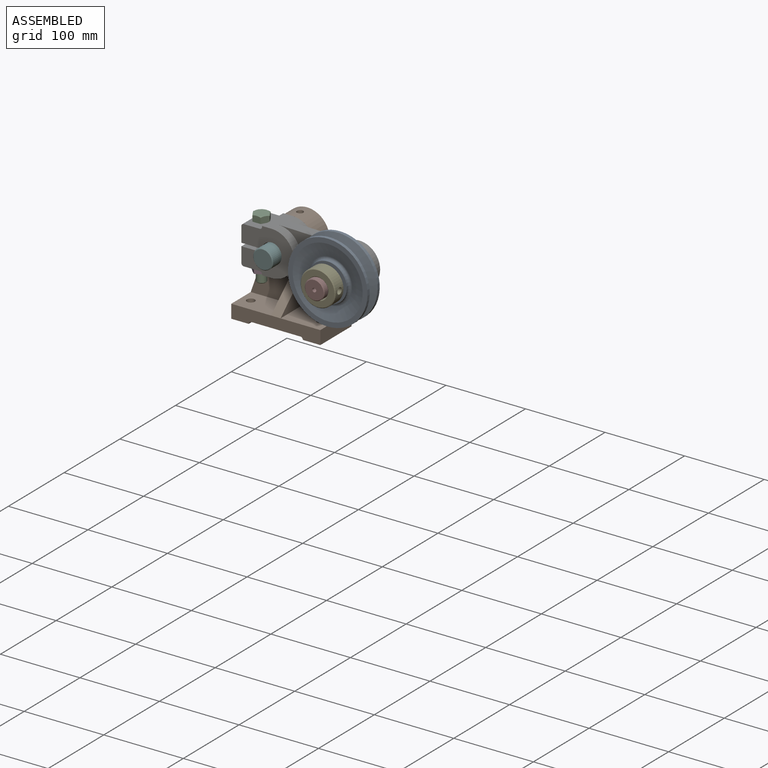
[diagram: assembled view]
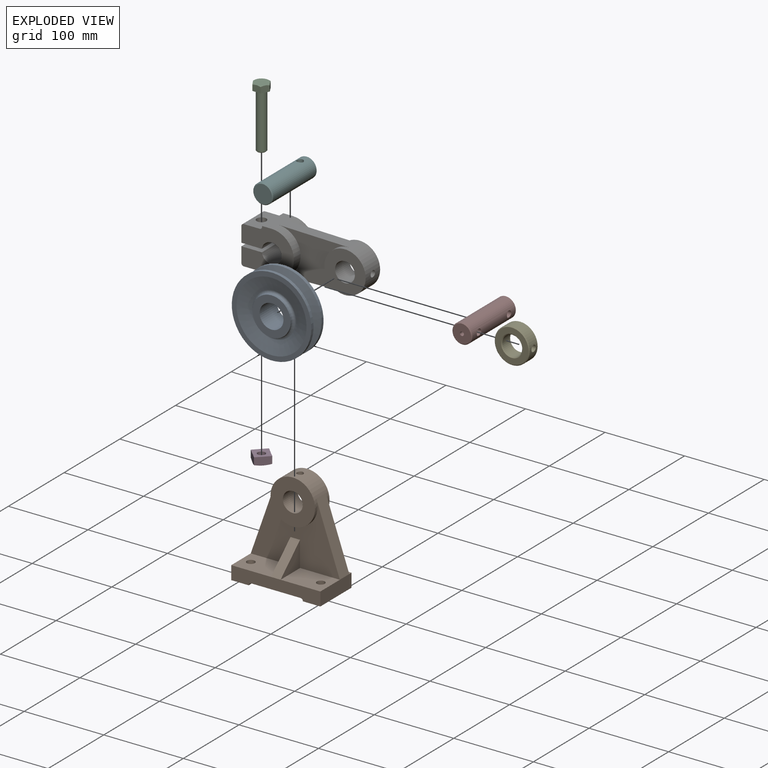
[diagram: exploded view]
GUIDED TOUR — MATED ASSEMBLY (Onshape document 08df7722d0648d103de82e93, AutoMate assembly 08df7722d0648d103de82e93_a9d48177c1520550c7e5c5c6_747af1aa704073f61f1a2b99_default)

This assembly has 8 components, labeled P0..P7 below (a component is one placed occurrence of a part; the same part can appear more than once), held together by 7 mates. A mate is a constraint between two components; its type names the relative motion it leaves free:
  FASTENED — locks the two components together rigidly (no relative motion),
  REVOLUTE — leaves rotation about the listed axis free (a hinge).
Axis/direction vectors are unit vectors and 'through' points are millimeter coordinates, both in the assembly's world frame.

MATES
  1. REVOLUTE "Revolute 1": P0 <-> P6, axis (0.000, -1.000, 0.000) through (40.14, -24.28, 81.66) mm
  2. FASTENED "Fastened 3": P3 <-> P6, direction (0.000, 0.000, 1.000) through (-73.86, -11.28, 57.66) mm
  3. FASTENED "Fastened 1": P6 <-> P1, direction (0.000, 1.000, 0.000) through (-47.86, 7.72, 81.66) mm
  4. FASTENED "Fastened 4": P7 <-> P6, direction (1.000, 0.000, 0.000) through (51.89, -11.28, 81.66) mm
  5. FASTENED "Fastened 6": P4 <-> P7, direction (-1.000, 0.000, 0.000) through (51.89, -65.28, 81.66) mm
  6. FASTENED "Fastened 2": P2 <-> P6, direction (0.000, 0.000, 1.000) through (-73.86, -11.28, 105.66) mm
  7. FASTENED "Fastened 5": P1 <-> P5, direction (0.000, 0.000, -1.000) through (-47.86, 20.72, 93.39) mm

ASSEMBLY ORDER
  1. P6 — the base component [order heuristic]
  2. P0 — core [order heuristic]
  3. P5 — core [order heuristic]
  4. P7 — core [order heuristic]
  5. P4 — core [order heuristic]
  6. P1 — core [order heuristic]
  7. P3 [order verified]
  8. P2 [order verified]
Order-tag legend:
  [order verified] — this step's position reverses a verified removal order: the component was checked to insert without passing through the ones already placed.
  [order heuristic] — the first 6 components form the assembly's core: parts whose collision-free extraction could not be verified, listed in mate-graph order.

Of the 8 components, 1 carries the full construction recipe — the FeatureScript program that regenerates the part's solid from scratch; the rest are supplied as boundary geometry only.
Each toured component is shown spotlighted twice — in the assembled view, then in the exploded view, where a leader line traces a displaced component back to its assembled socket (saturated green if recipe-attached, orange if geometry-only; every other component desaturated gray) — followed by its recipe or geometry summary and the mates that hold it.
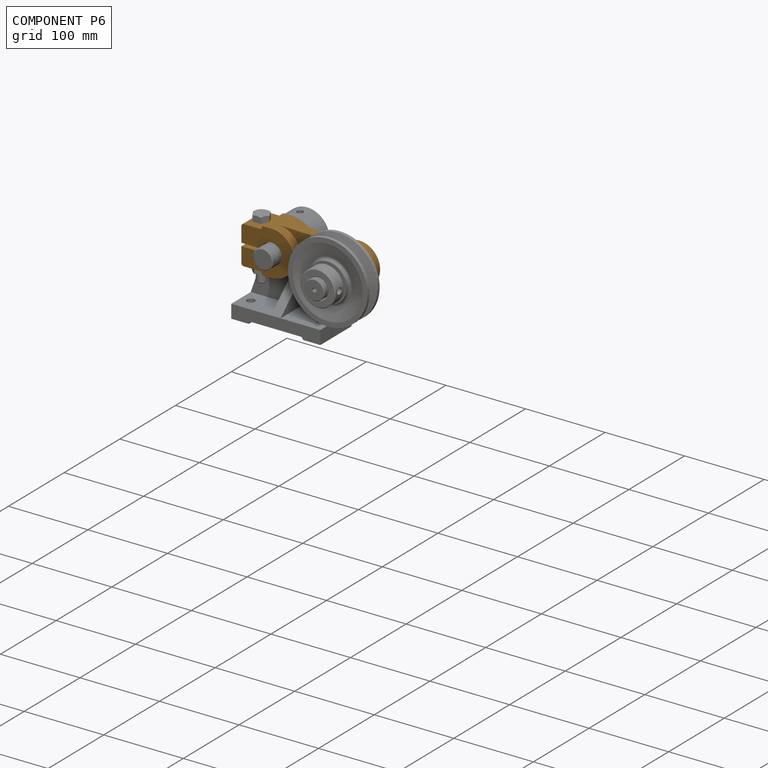
[diagram: component P6 — assembled]
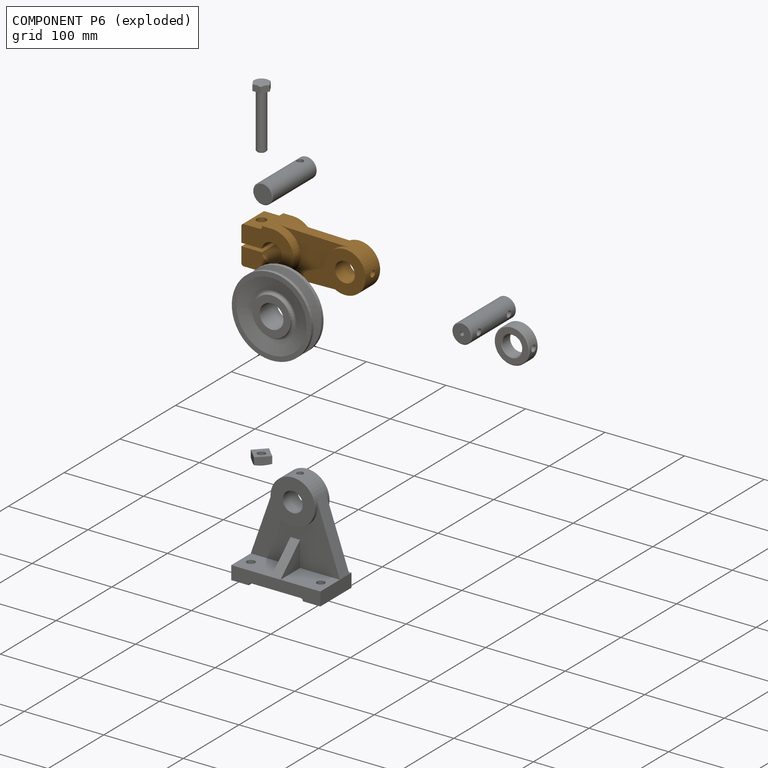
[diagram: component P6 — exploded]
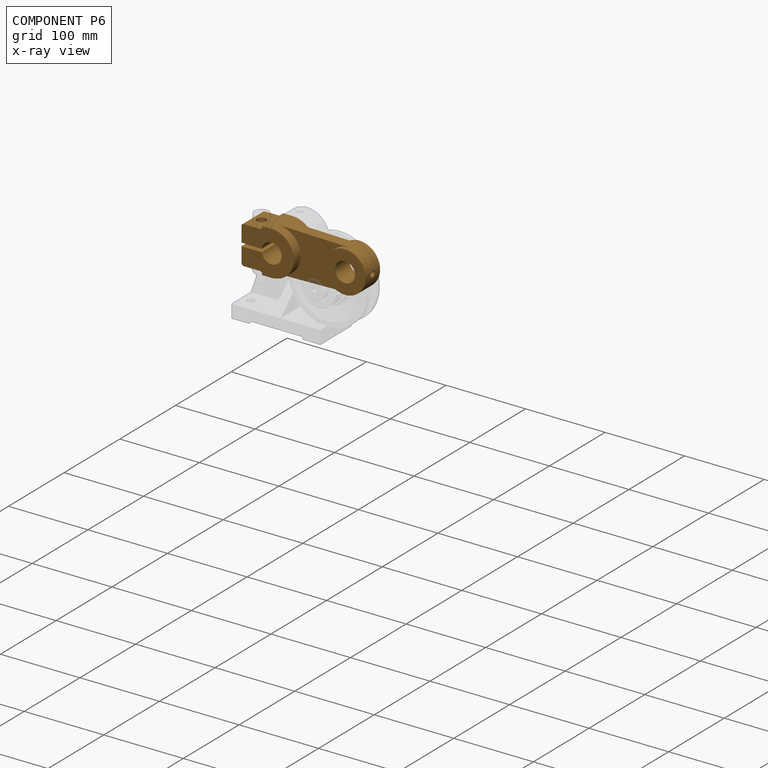
[diagram: component P6 — x-ray view]
COMPONENT P6 — geometry summary (no construction recipe available for this part):
  bounding box: 152.0 x 56.0 x 38.0 mm
  B-rep topology: 1 solid, 29 faces, 166 edges
  volume: 168446 mm^3 (52% of its bounding box)
  symmetry: 2-fold rotationally symmetric about the x axis; mirror-symmetric across its y mid-plane, z mid-plane
Held by: REVOLUTE mate "Revolute 1" to P0; FASTENED mate "Fastened 3" to P3; FASTENED mate "Fastened 1" to P1; FASTENED mate "Fastened 4" to P7; FASTENED mate "Fastened 2" to P2.
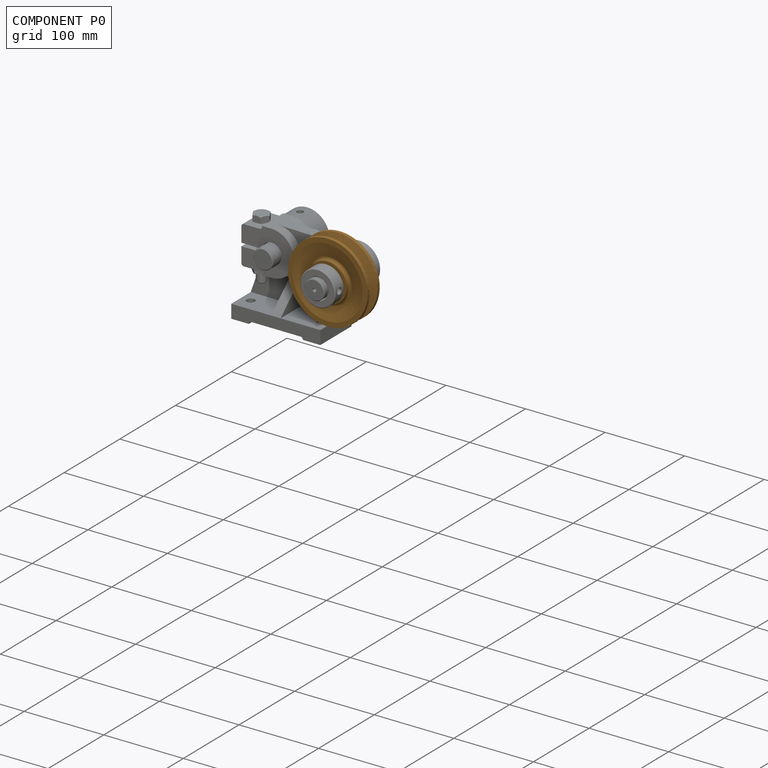
[diagram: component P0 — assembled]
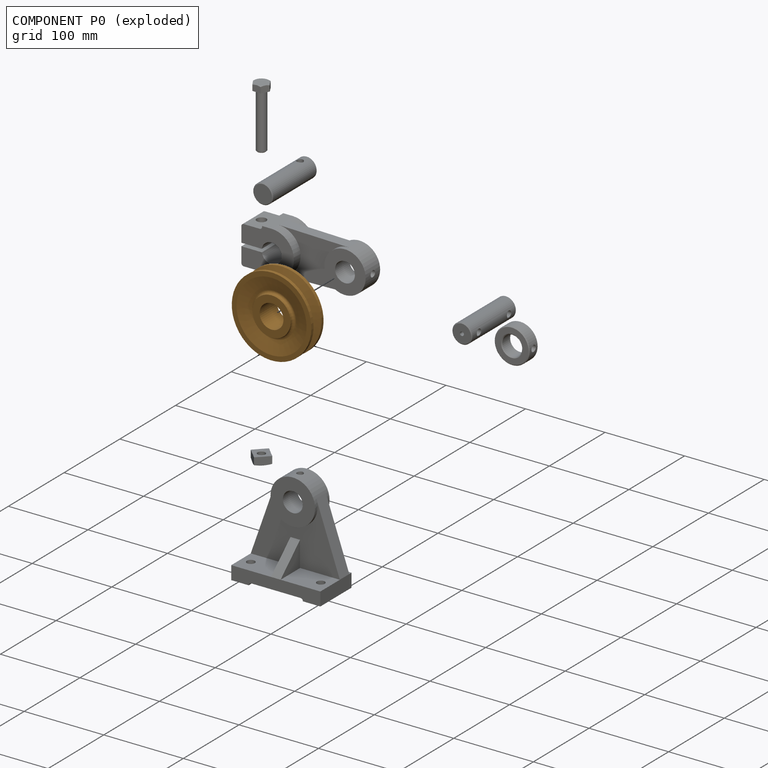
[diagram: component P0 — exploded]
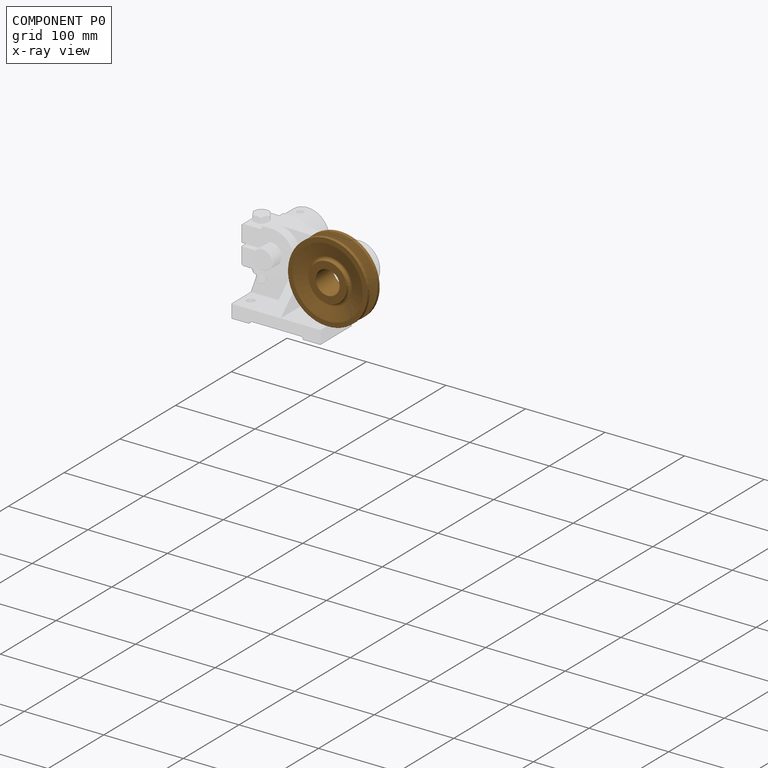
[diagram: component P0 — x-ray view]
COMPONENT P0 — geometry summary (no construction recipe available for this part):
  bounding box: 100.0 x 100.0 x 31.0 mm
  B-rep topology: 1 solid, 16 faces, 60 edges
  volume: 105118 mm^3 (34% of its bounding box)
  symmetry: revolution-symmetric about the z axis through its bounding-box center; mirror-symmetric across its x mid-plane, y mid-plane
Held by: REVOLUTE mate "Revolute 1" to P6.
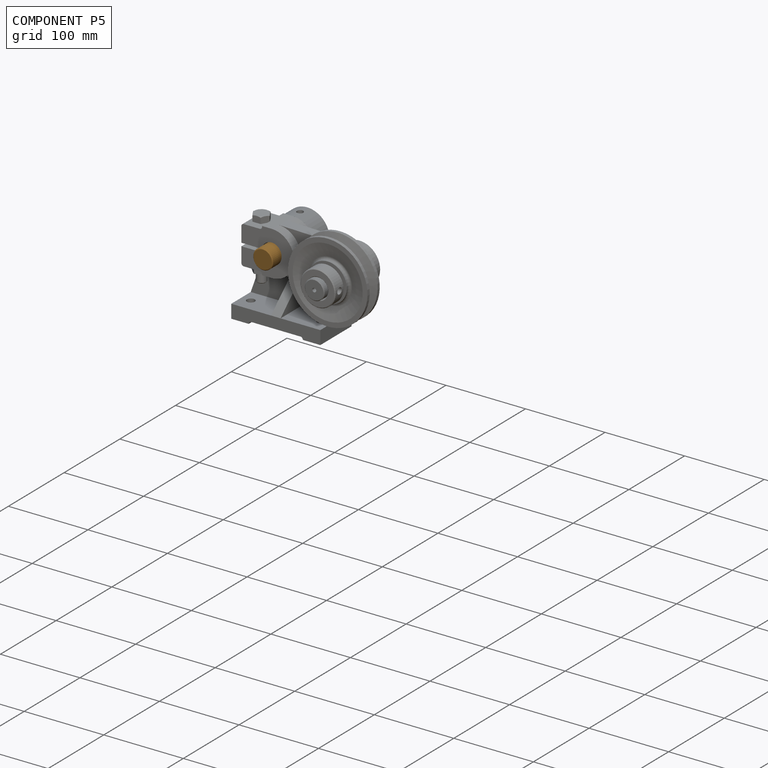
[diagram: component P5 — assembled]
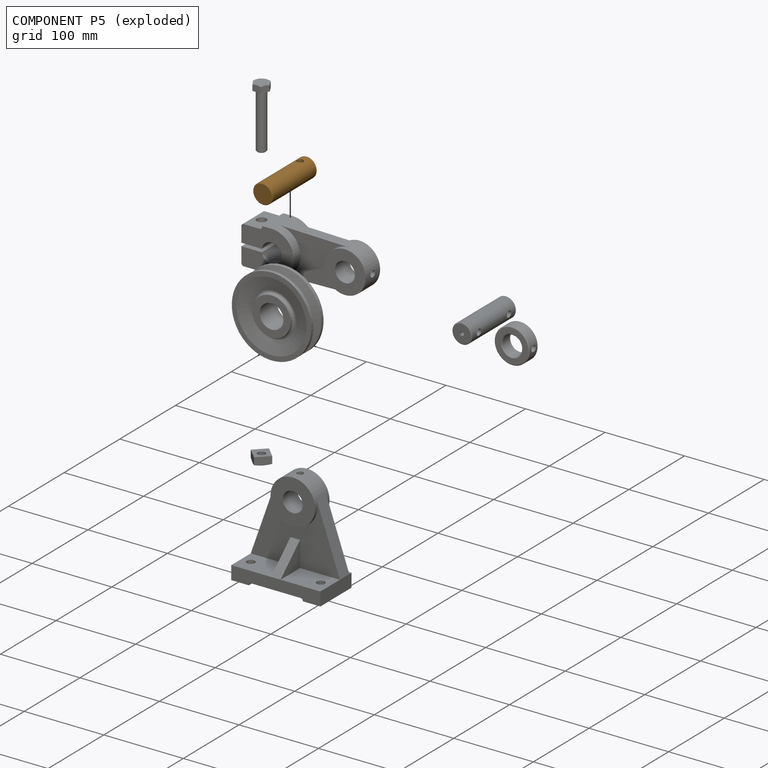
[diagram: component P5 — exploded]
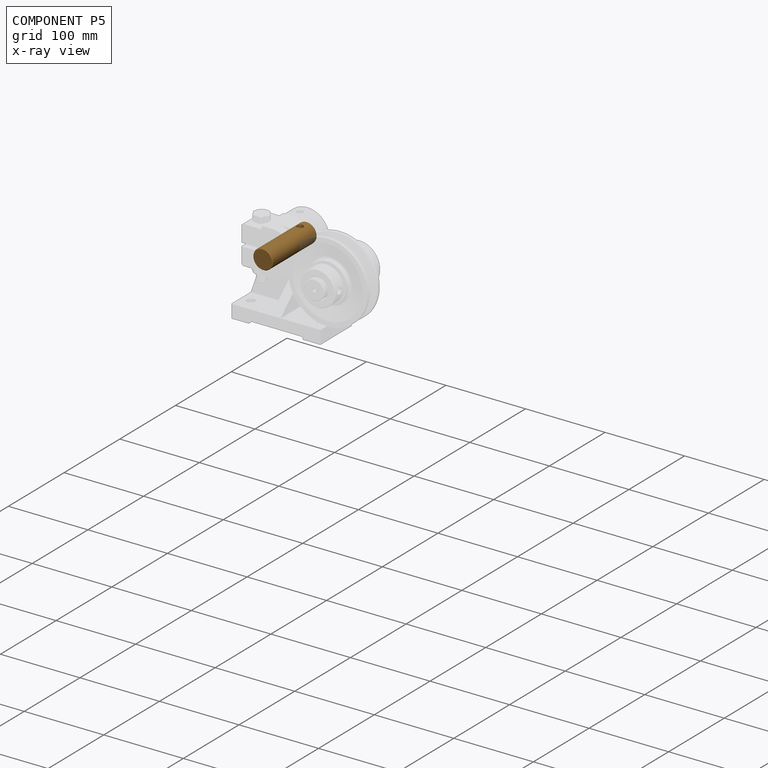
[diagram: component P5 — x-ray view]
COMPONENT P5 — geometry summary (no construction recipe available for this part):
  bounding box: 80.0 x 25.0 x 25.0 mm
  B-rep topology: 1 solid, 7 faces, 20 edges
  volume: 38799 mm^3 (78% of its bounding box)
  symmetry: mirror-symmetric across its x mid-plane
Held by: FASTENED mate "Fastened 5" to P1.
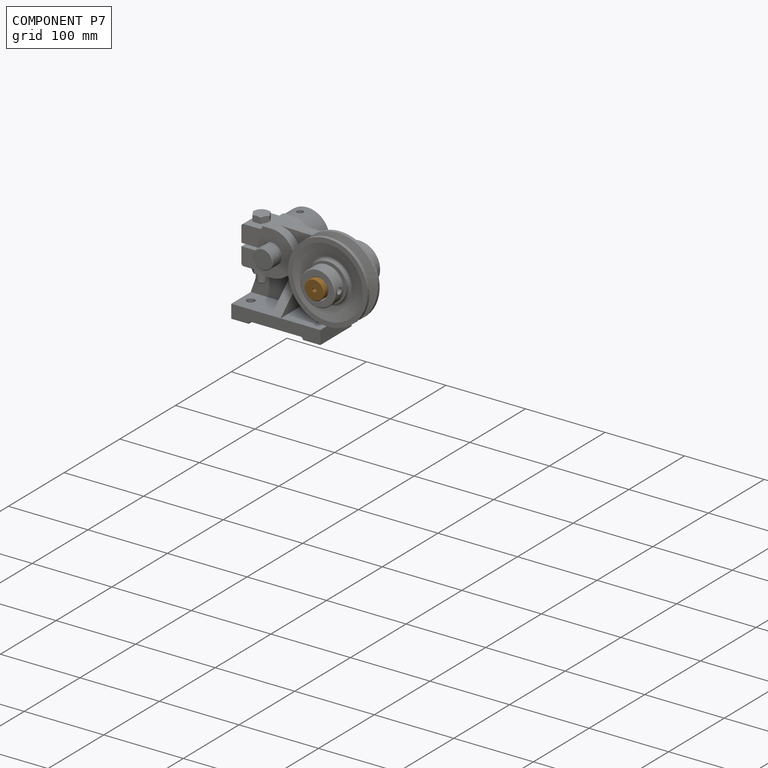
[diagram: component P7 — assembled]
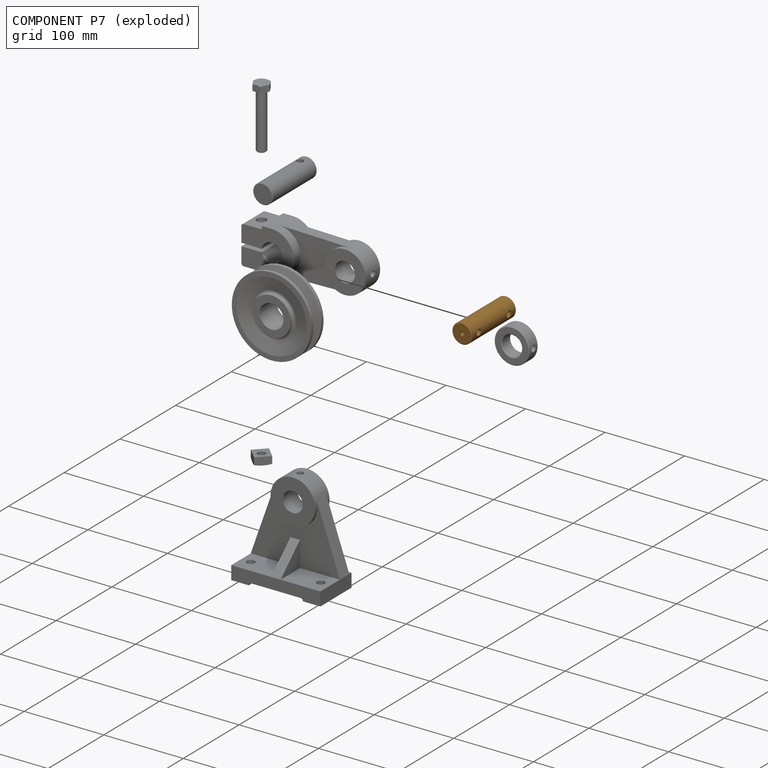
[diagram: component P7 — exploded]
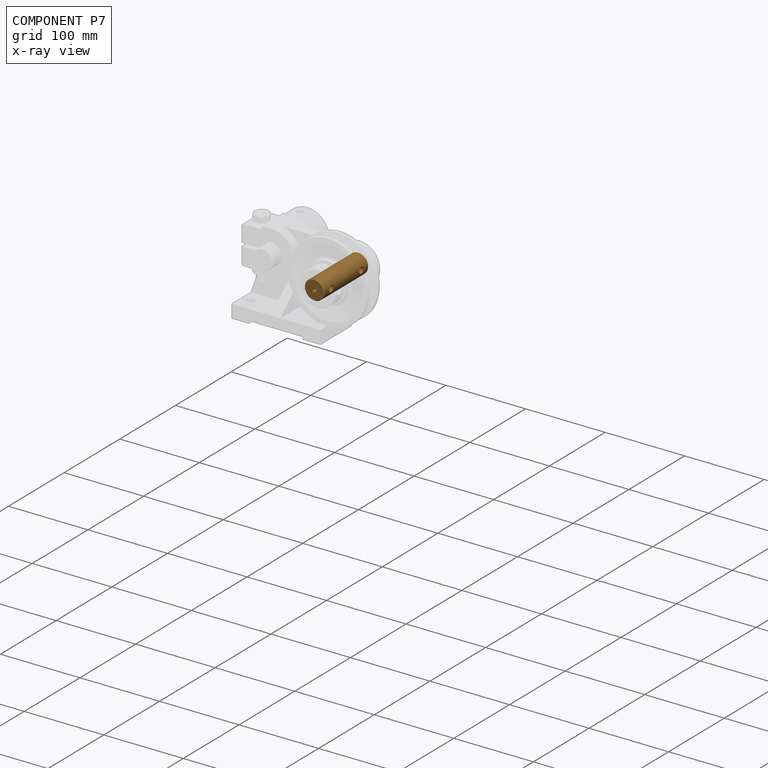
[diagram: component P7 — x-ray view]
COMPONENT P7 — geometry summary (no construction recipe available for this part):
  bounding box: 80.0 x 25.0 x 25.0 mm
  B-rep topology: 1 solid, 16 faces, 68 edges
  volume: 37221 mm^3 (74% of its bounding box)
Held by: FASTENED mate "Fastened 4" to P6; FASTENED mate "Fastened 6" to P4.
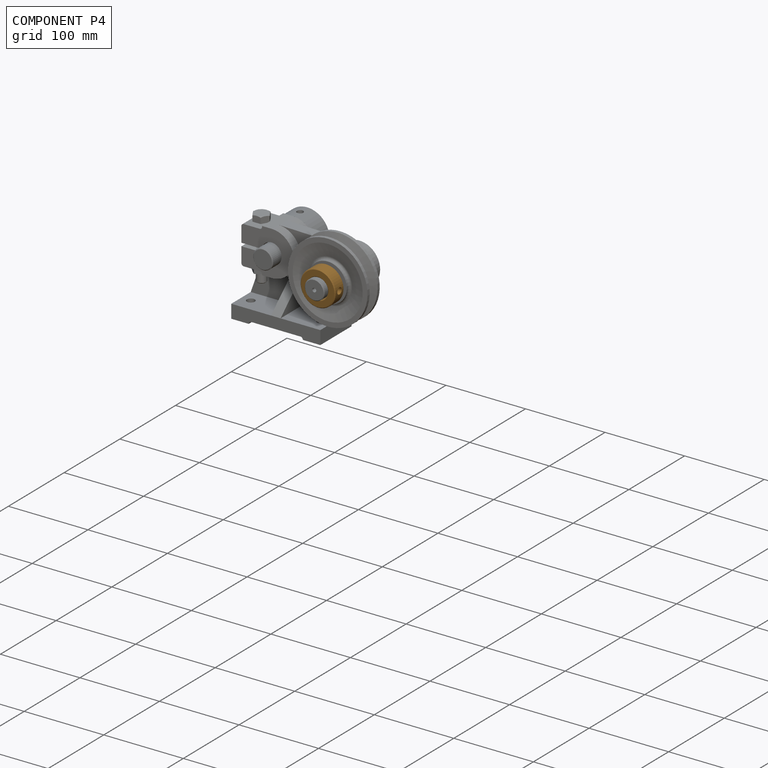
[diagram: component P4 — assembled]
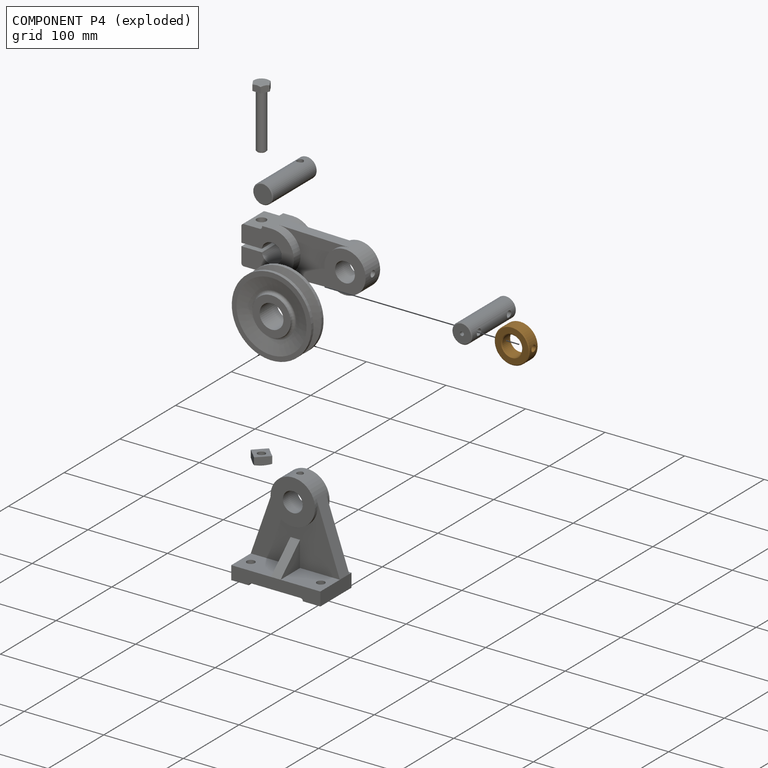
[diagram: component P4 — exploded]
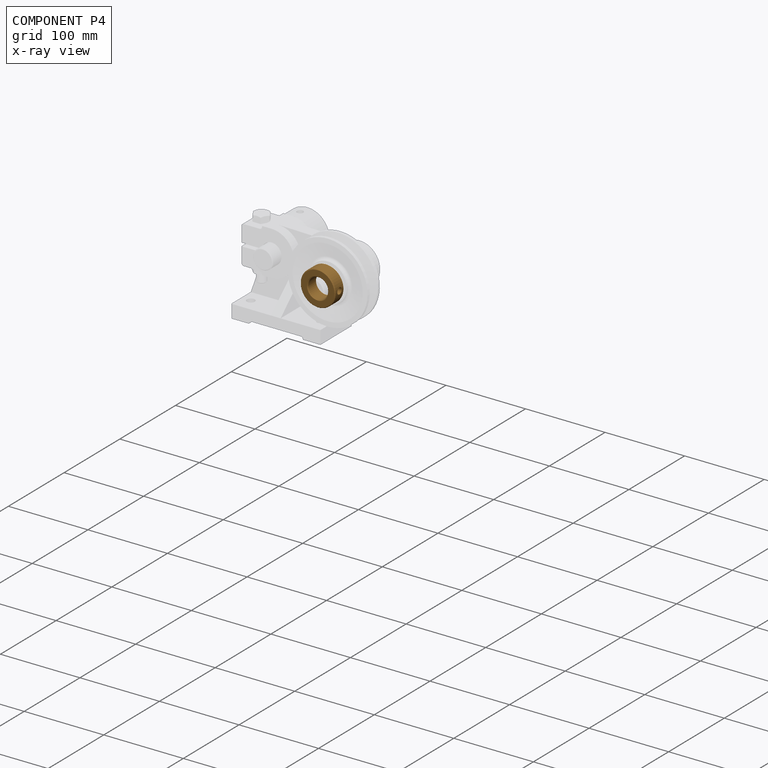
[diagram: component P4 — x-ray view]
COMPONENT P4 — geometry summary (no construction recipe available for this part):
  bounding box: 44.0 x 44.0 x 16.0 mm
  B-rep topology: 1 solid, 9 faces, 34 edges
  volume: 15780 mm^3 (51% of its bounding box)
  symmetry: 2-fold rotationally symmetric about the y axis; mirror-symmetric across its x mid-plane, z mid-plane
Held by: FASTENED mate "Fastened 6" to P7.
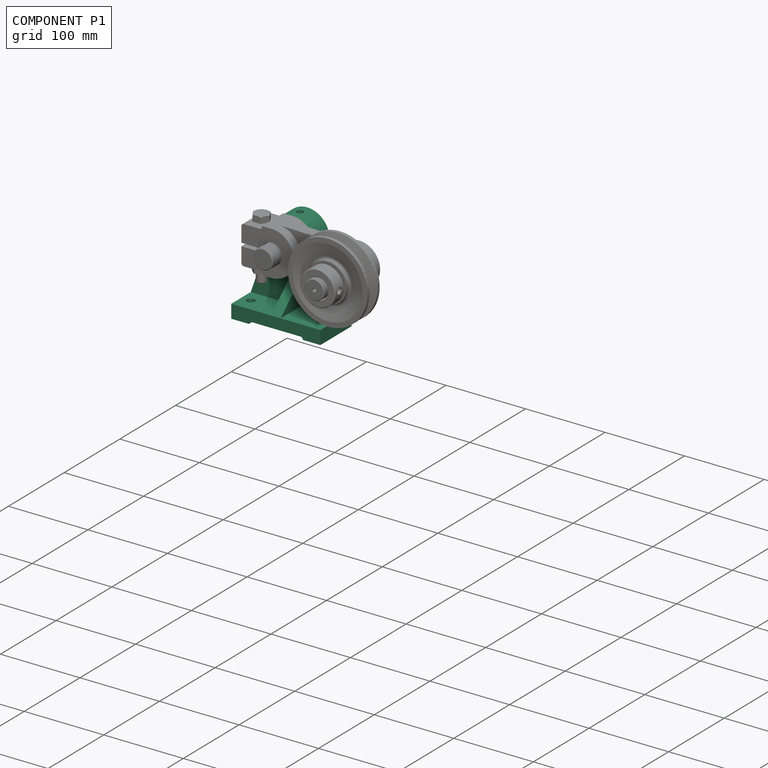
[diagram: component P1 — assembled]
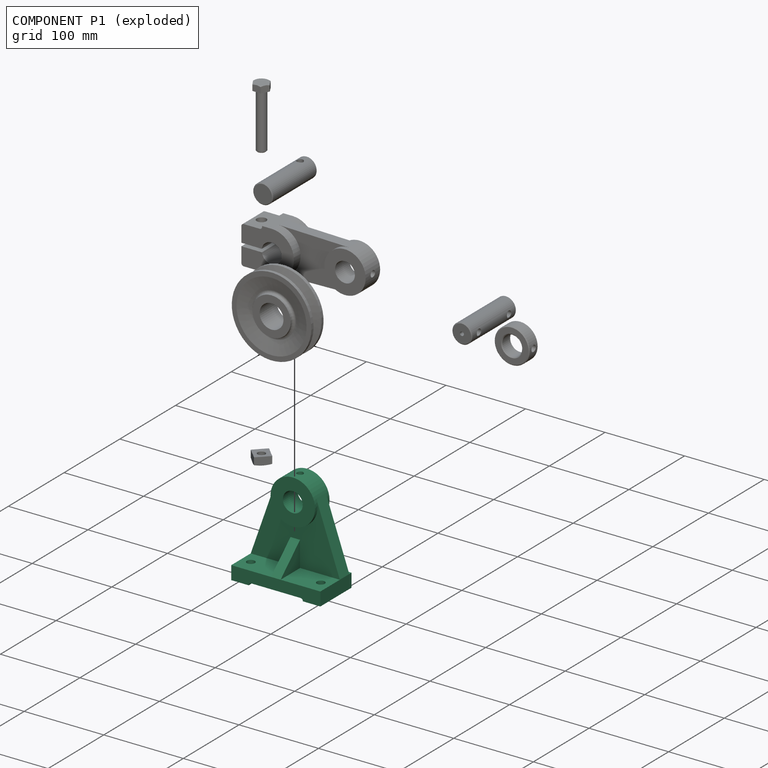
[diagram: component P1 — exploded]
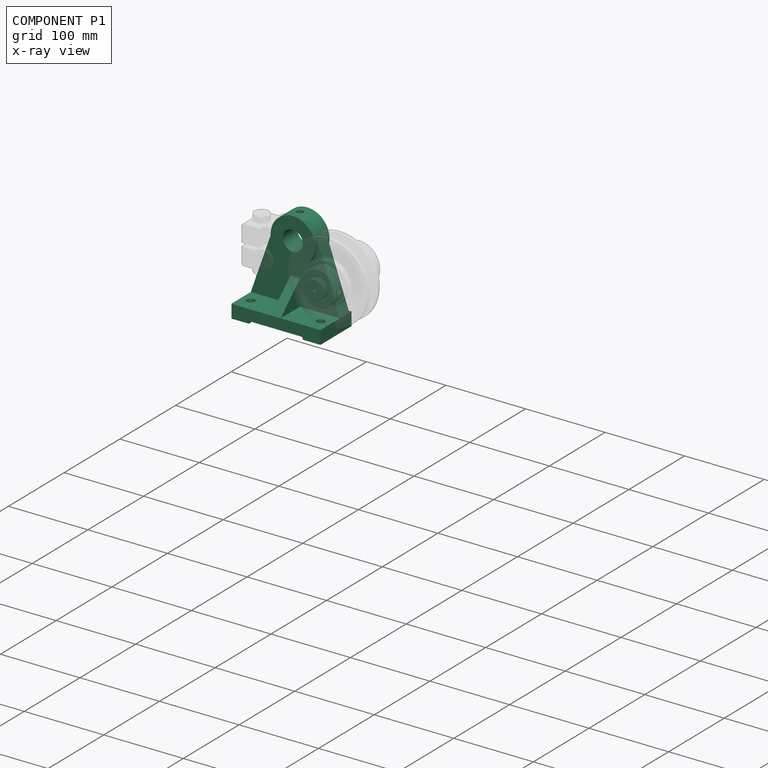
[diagram: component P1 — x-ray view]
COMPONENT P1 — recipe-attached (CADFS 00388174, mesh-verified: the recipe's output STEP matches this component's geometry to below the mesh-comparison resolution (tessellation chordal tolerance ~0.26 mm)).
Held by: FASTENED mate "Fastened 1" to P6; FASTENED mate "Fastened 5" to P5.
Construction recipe (FeatureScript — the CAD program that rebuilds this solid; sketch coordinates are in the units given by the * unit suffixes, e.g. mm):

FeatureScript 1511;
import(path : "onshape/std/geometry.fs", version : "1511.0");
import(path : "onshape/std/common.fs", version : "1511.0");
const mm = millimeter;
const VERTEX = EntityType.VERTEX;
const EDGE = EntityType.EDGE;
const FACE = EntityType.FACE;
const BODY = EntityType.BODY;
function v(x, y){return vector(x, y);}
function OD(order){return orderDisambiguation(order);}
function OSD(set){return originalSetDisambiguation(set);}
function TD(topology){return topologyDisambiguation(topology);}
function TDD(query){return trueDependencyDisambiguation(query);}
function sQuery(a, b, c) {return sketchEntityQuery(a, b, c);}

annotation { "Feature Type Name" : "Feature", "Feature Type Description" : "" }
export const myFeature = defineFeature(function(context is Context, id is Id, definition is map)
    precondition{}
    {
        {
            var Q0;
            Q0=qCreatedBy(makeId("Top.planeOp"),FACE);
            var sketch = newSketch(context, id + "F0", { "sketchPlane" : qUnion([Q0])});
            skLineSegment(sketch, "E0", {"start": v(-56, 28) * mm, "end": v(56, 28) * mm});
            skLineSegment(sketch, "E1", {"start": v(56, 28) * mm, "end": v(56, -28) * mm});
            skLineSegment(sketch, "E2", {"start": v(56, -28) * mm, "end": v(-56, -28) * mm});
            skLineSegment(sketch, "E3", {"start": v(-56, -28) * mm, "end": v(-56, 28) * mm});
            skLineSegment(sketch, "E4", {"start": v(-56, -28) * mm, "end": v(0, 0) * mm, "construction": true});
            skLineSegment(sketch, "E5", {"start": v(0, 0) * mm, "end": v(56, 28) * mm, "construction": true});
            skLineSegment(sketch, "E6", {"start": v(-56, 28) * mm, "end": v(0, 0) * mm, "construction": true});
            skLineSegment(sketch, "E7", {"start": v(56, -28) * mm, "end": v(0, 0) * mm, "construction": true});
            skSolve(sketch);
        }
        {
            var Q0;
            Q0 = qSketchRegion(id + "F0", true);
            extrude(context, id + "F1", {"entities" : qUnion([Q0]), "depth" : 17 * mm});
        }
        {
            var Q0;
            Q0=makeQuery(id+"F1.opExtrude","SWEPT_FACE",FACE,{"disambiguationData":[OSD([sQuery(id+"F0.wireOp",EDGE,"E0")])]});
            cPlane(context, id + "F2", {"entities" : qUnion([Q0]), "cplaneType" : CPlaneType.OFFSET, "offset" : 4 * mm, "oppositeDirection" : true, "width" : 150 * mm, "height" : 150 * mm});
        }
        {
            var Q0;
            Q0=qCreatedBy(id+"F2.planeOp",FACE);
            var sketch = newSketch(context, id + "F3", { "sketchPlane" : qUnion([Q0])});
            skLineSegment(sketch, "E8", {"start": v(-56, 17) * mm, "end": v(-26.42, 101.27) * mm});
            skLineSegment(sketch, "E9", {"start": v(56, 17) * mm, "end": v(26.42, 101.27) * mm});
            skCircle(sketch, "E10", {"center": v(0, 92) * mm, "radius": 28 * mm});
            skCircle(sketch, "E11", {"center": v(0, 92) * mm, "radius": 12.5 * mm});
            skLineSegment(sketch, "E12", {"start": v(56, 17) * mm, "end": v(-56, 17) * mm});
            skSolve(sketch);
        }
        {
            var Q0;
            Q0 = qSketchRegion(id + "F3", true);
            extrude(context, id + "F4", {"entities" : qUnion([Q0]), "operationType" : NewBodyOperationType.ADD, "oppositeDirection" : true, "depth" : 17 * mm});
        }
        {
            var Q0;
            Q0=makeQuery(id+"F4.opExtrude","CAP_FACE",FACE,{"disambiguationData":[OSD([sQuery(id+"F3.wireOp",EDGE,"E8"),sQuery(id+"F3.wireOp",EDGE,"E9"),sQuery(id+"F3.wireOp",EDGE,"E10"),sQuery(id+"F3.wireOp",EDGE,"E11"),sQuery(id+"F3.wireOp",EDGE,"E12")])],"isStart":true});
            cPlane(context, id + "F5", {"entities" : qUnion([Q0]), "cplaneType" : CPlaneType.OFFSET, "offset" : 8.5 * mm, "oppositeDirection" : true, "width" : 150 * mm, "height" : 150 * mm});
        }
        {
            var Q0;
            Q0=qCreatedBy(id+"F5.planeOp",FACE);
            var sketch = newSketch(context, id + "F6", { "sketchPlane" : qUnion([Q0])});
            skCircle(sketch, "E13", {"center": v(0, 92) * mm, "radius": 28 * mm});
            skSolve(sketch);
        }
        {
            var Q0;
            Q0 = qSketchRegion(id + "F6", true);
            extrude(context, id + "F7", {"entities" : qUnion([Q0]), "operationType" : NewBodyOperationType.ADD, "endBound" : BoundingType.SYMMETRIC, "depth" : 26 * mm});
        }
        {
            var Q0;
            Q0=makeQuery(id+"F3.imprint","IMPRINT",FACE,{"disambiguationData":[TD([[makeQuery(id+"F3.imprint","IMPRINT",EDGE,{"derivedFrom":sQuery(id+"F3.wireOp",EDGE,"E11")}),1.0]])]});
            extrude(context, id + "F8", {"entities" : qUnion([Q0]), "operationType" : NewBodyOperationType.REMOVE, "endBound" : BoundingType.SYMMETRIC, "oppositeDirection" : true, "depth" : 50 * mm});
        }
        {
            var Q0;
            Q0=qCreatedBy(makeId("Top.planeOp"),FACE);
            cPlane(context, id + "F9", {"entities" : qUnion([Q0]), "cplaneType" : CPlaneType.OFFSET, "offset" : 92 * mm, "width" : 150 * mm, "height" : 150 * mm});
        }
        {
            var Q0;
            Q0=qCreatedBy(id+"F9.planeOp",FACE);
            var sketch = newSketch(context, id + "F10", { "sketchPlane" : qUnion([Q0])});
            skCircle(sketch, "E14", {"center": v(0, 15.5) * mm, "radius": 4 * mm});
            skSolve(sketch);
        }
        {
            var Q0;
            Q0 = qSketchRegion(id + "F10", true);
            extrude(context, id + "F11", {"entities" : qUnion([Q0]), "operationType" : NewBodyOperationType.REMOVE, "endBound" : BoundingType.THROUGH_ALL, "depth" : 25 * mm});
        }
        {
            var Q0;
            {var subQ0=sQuery(id+"F0.wireOp",EDGE,"E3");var subQ2=sQuery(id+"F0.wireOp",EDGE,"E2");var subQ3=sQuery(id+"F0.wireOp",EDGE,"E1");Q0=makeQuery(id+"F4.boolean.opBoolean","SPLIT",FACE,{"disambiguationData":[TD([makeQuery(id+"F1.opExtrude","SWEPT_FACE",FACE,{"disambiguationData":[OSD([subQ2])]})])],"derivedFrom":makeQuery(id+"F1.opExtrude","CAP_FACE",FACE,{"disambiguationData":[OSD([sQuery(id+"F0.wireOp",EDGE,"E0"),subQ3,subQ2,subQ0])],"isStart":false})});}
            var sketch = newSketch(context, id + "F12", { "sketchPlane" : qUnion([Q0])});
            skCircle(sketch, "E15", {"center": v(-44, -10) * mm, "radius": 5 * mm});
            skCircle(sketch, "E16", {"center": v(44, -10) * mm, "radius": 5 * mm});
            skLineSegment(sketch, "E17", {"start": v(-44, -10) * mm, "end": v(0, 0) * mm, "construction": true});
            skLineSegment(sketch, "E18", {"start": v(0, 0) * mm, "end": v(44, -10) * mm, "construction": true});
            skSolve(sketch);
        }
        {
            var Q0;
            Q0 = qSketchRegion(id + "F12", true);
            extrude(context, id + "F13", {"entities" : qUnion([Q0]), "operationType" : NewBodyOperationType.REMOVE, "endBound" : BoundingType.THROUGH_ALL, "oppositeDirection" : true, "depth" : 25 * mm});
        }
        {
            var Q0;
            Q0=makeQuery(id+"F1.opExtrude","SWEPT_FACE",FACE,{"disambiguationData":[OSD([sQuery(id+"F0.wireOp",EDGE,"E1")])]});
            cPlane(context, id + "F14", {"entities" : qUnion([Q0]), "cplaneType" : CPlaneType.OFFSET, "offset" : 56 * mm, "oppositeDirection" : true, "width" : 150 * mm, "height" : 150 * mm});
        }
        {
            var Q0;
            Q0=qCreatedBy(id+"F14.planeOp",FACE);
            var sketch = newSketch(context, id + "F15", { "sketchPlane" : qUnion([Q0])});
            skLineSegment(sketch, "E19", {"start": v(7, 49) * mm, "end": v(-28, 17) * mm});
            skLineSegment(sketch, "E20", {"start": v(-28, 17) * mm, "end": v(7, 17) * mm});
            skLineSegment(sketch, "E21", {"start": v(7, 17) * mm, "end": v(7, 49) * mm});
            skSolve(sketch);
        }
        {
            var Q0;
            Q0 = qSketchRegion(id + "F15", true);
            extrude(context, id + "F16", {"entities" : qUnion([Q0]), "operationType" : NewBodyOperationType.ADD, "endBound" : BoundingType.SYMMETRIC, "depth" : 12 * mm});
        }
        {
            var Q0;
            Q0=makeQuery(id+"F1.opExtrude","SWEPT_FACE",FACE,{"disambiguationData":[OSD([sQuery(id+"F0.wireOp",EDGE,"E2")])]});
            var sketch = newSketch(context, id + "F17", { "sketchPlane" : qUnion([Q0])});
            skArc(sketch, "E22", {"start": v(-31, 3) * mm, "mid": v(-34, 0) * mm, "end": v(-31, -3) * mm});
            skArc(sketch, "E23", {"start": v(31, -3) * mm, "mid": v(34, 0) * mm, "end": v(31, 3) * mm});
            skLineSegment(sketch, "E24", {"start": v(-31, 3) * mm, "end": v(31, 3) * mm});
            skLineSegment(sketch, "E25", {"start": v(-31, -3) * mm, "end": v(31, -3) * mm});
            skLineSegment(sketch, "E26", {"start": v(-34, 0) * mm, "end": v(34, 0) * mm, "construction": true});
            skPoint(sketch, "E26.startSnap0", {"position": v(-34, 0) * mm});
            skSolve(sketch);
        }
        {
            var Q0;
            Q0 = qSketchRegion(id + "F17", true);
            extrude(context, id + "F18", {"entities" : qUnion([Q0]), "operationType" : NewBodyOperationType.REMOVE, "endBound" : BoundingType.THROUGH_ALL, "oppositeDirection" : true, "depth" : 25 * mm});
        }
    });
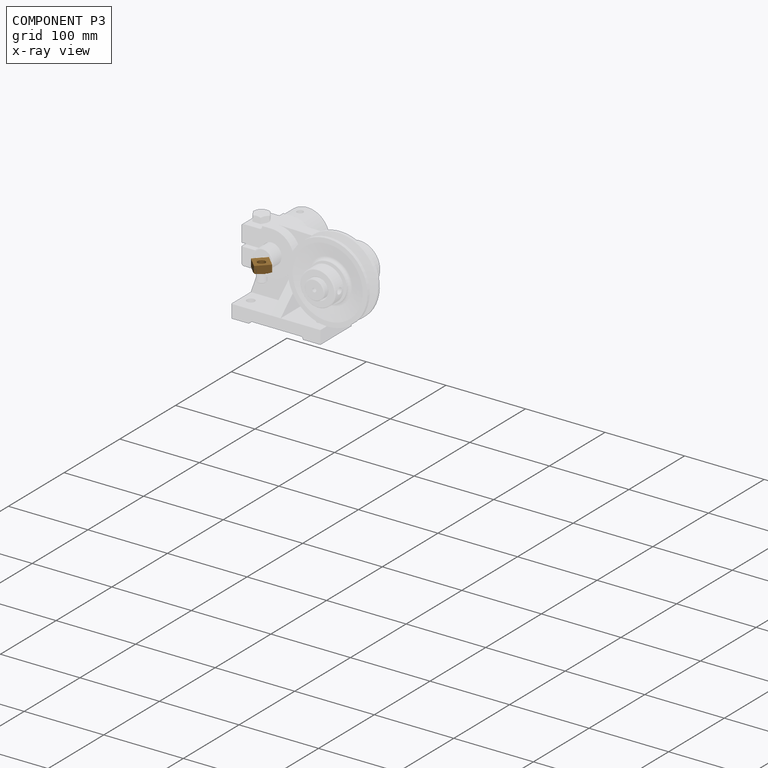
[diagram: component P3 — x-ray view]
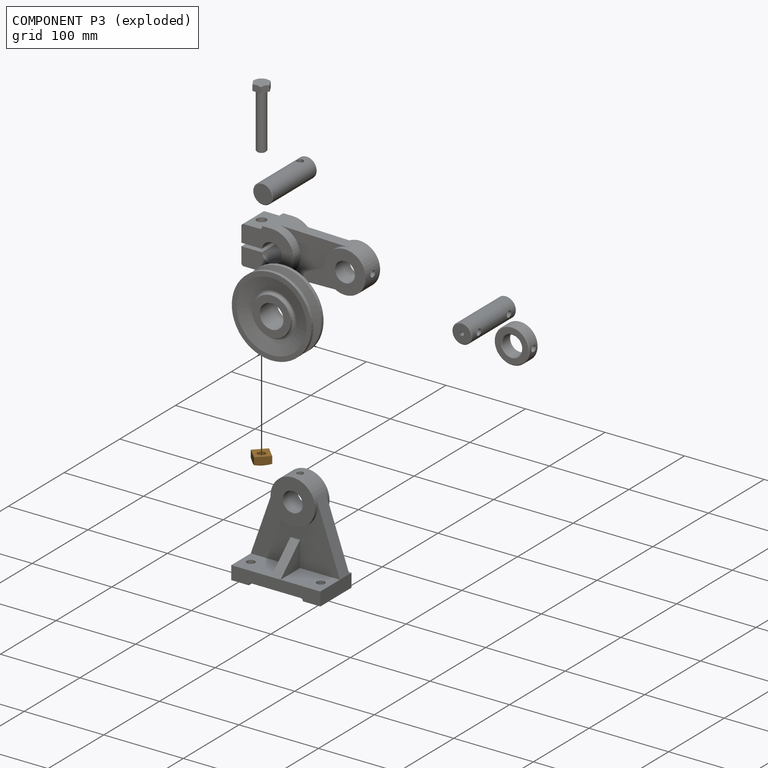
[diagram: component P3 — exploded]
COMPONENT P3 — geometry summary (no construction recipe available for this part):
  bounding box: 26.9 x 26.9 x 10.0 mm
  B-rep topology: 1 solid, 15 faces, 64 edges
  volume: 2902 mm^3 (40% of its bounding box)
  symmetry: 4-fold rotationally symmetric about the z axis; mirror-symmetric across its x mid-plane, y mid-plane
Held by: FASTENED mate "Fastened 3" to P6.
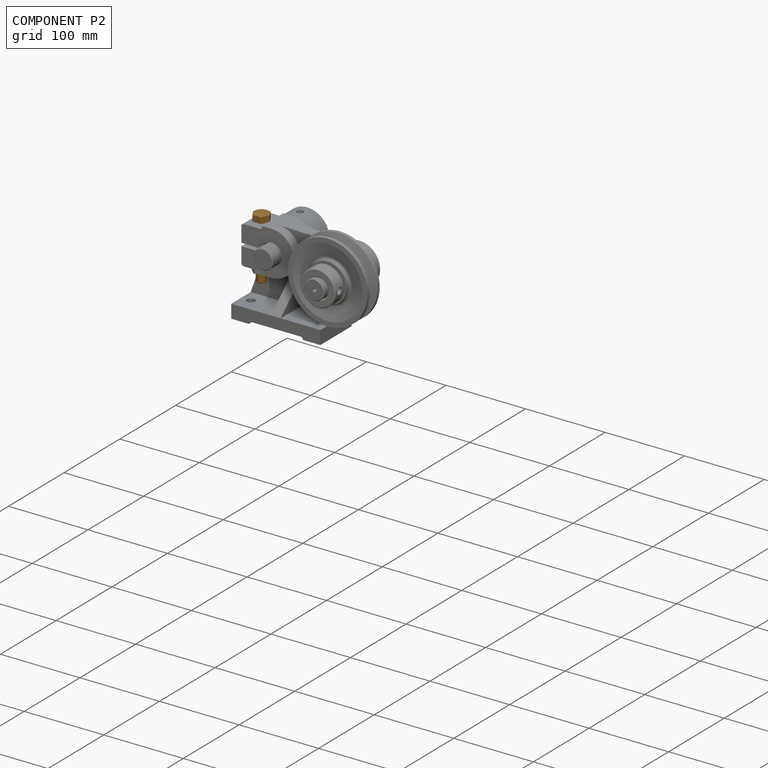
[diagram: component P2 — assembled]
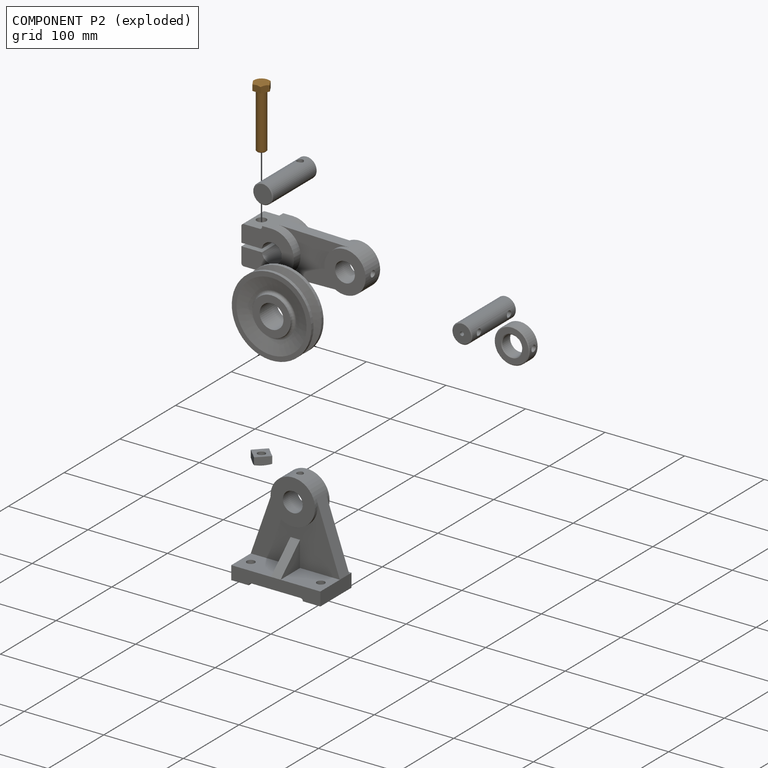
[diagram: component P2 — exploded]
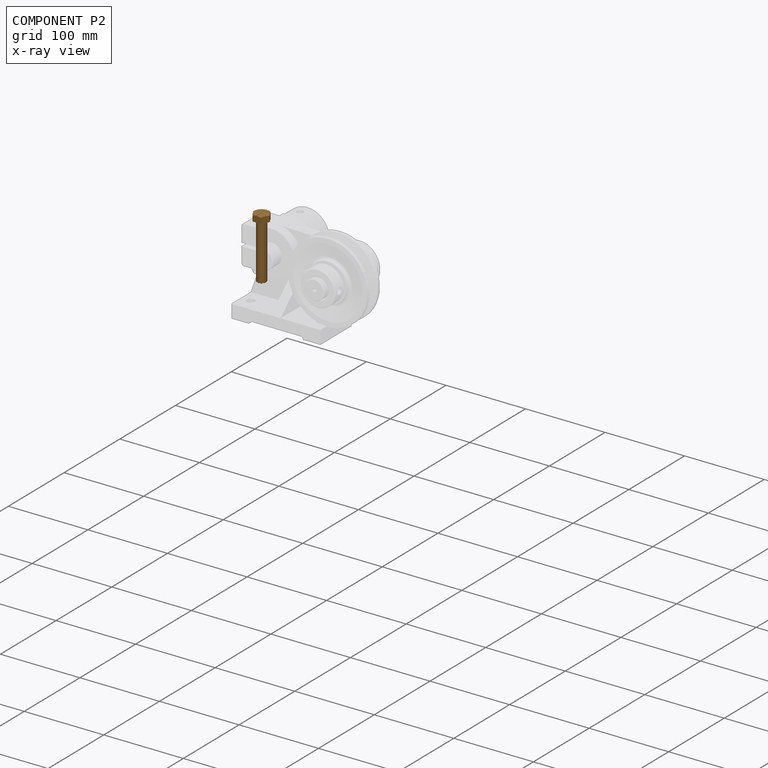
[diagram: component P2 — x-ray view]
COMPONENT P2 — geometry summary (no construction recipe available for this part):
  bounding box: 78.8 x 21.6 x 21.6 mm
  B-rep topology: 1 solid, 17 faces, 72 edges
  volume: 10203 mm^3 (28% of its bounding box)
  symmetry: 6-fold rotationally symmetric about the x axis; mirror-symmetric across its y mid-plane, z mid-plane
Held by: FASTENED mate "Fastened 2" to P6.
PROVENANCE & LICENSES
Assembly (occurrences, transforms, mates, per-part STEP geometry): AutoMate dataset, Zenodo record 7776208, CC0.
Construction recipes: CADFS (HuggingFace VladPyatov/CADFS, CC-BY-4.0, layered over the ABC dataset), FeatureScript reconstruction programs keyed by ABC model id.
Join: ABC meta listings map ABC model id -> Onshape documentId; within a shared document, parts are matched by geometric signature (bounding-box dims + volume at 0.1% relative tolerance, exact B-rep face/solid counts).
Verification: 1 of this assembly's 8 components carries a recipe attachment, and every attachment is mesh-verified: the CADFS STEP and the AutoMate member STEP were compared as meshes in their shared local frame (symmetric sampled-point-to-mesh distance); worst across the 1 attachment: below the mesh-comparison resolution (tessellation chordal tolerance ~0.26 mm) on a 174 mm part.
Renders: orthographic iso camera (az 35 / el 25); the floor grid conveys scale (grid pitch printed in each image; no ruler). In the exploded view each component is displaced by its stored offset vector: the offsets alone carry the explosion direction (mate normal/axis signs are not orientation cues and do not encode it), and separation distances are assigned per mate-chain, not proportionally to assembly-order depth.
